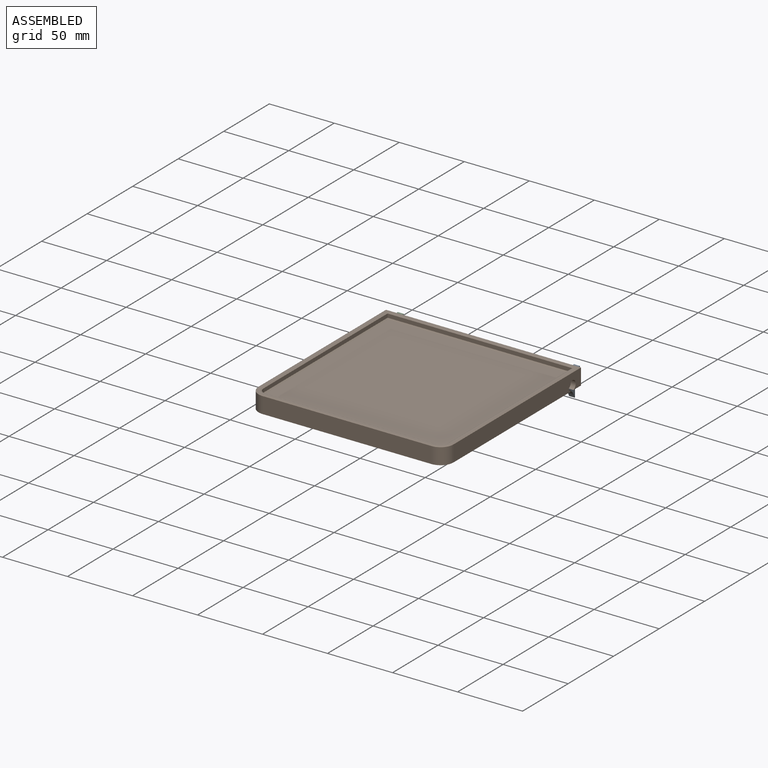
[diagram: assembled view]
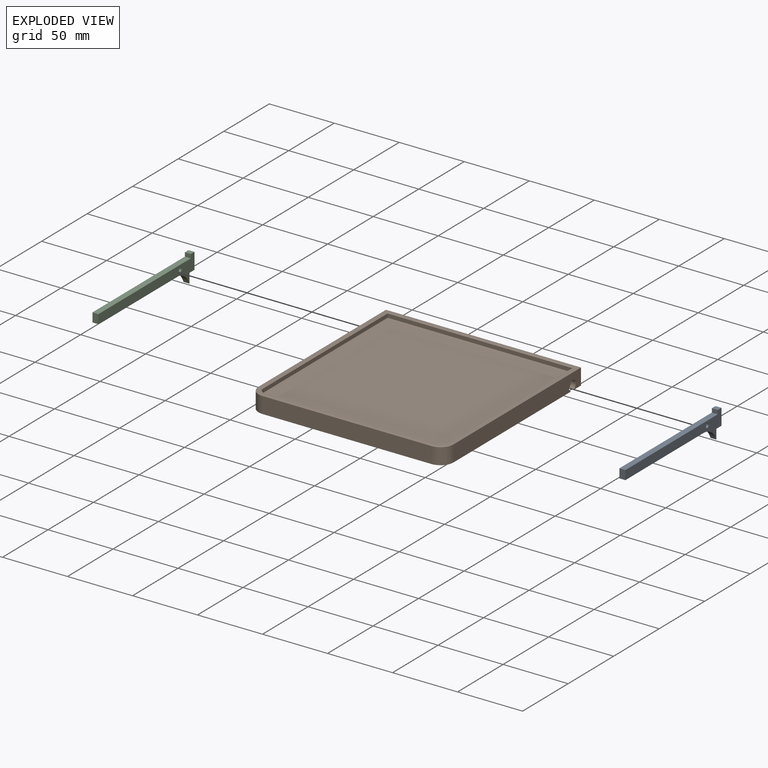
[diagram: exploded view]
GUIDED TOUR — MATED ASSEMBLY (Onshape document b846859b58dc575f62e6a8b0, AutoMate assembly b846859b58dc575f62e6a8b0_b44fd107755dee3eb834b895_cbd473a49aa8310a8f889dbc_default)

This assembly has 3 components, labeled P0..P2 below (a component is one placed occurrence of a part; the same part can appear more than once), held together by 2 mates. A mate is a constraint between two components; its type names the relative motion it leaves free:
  FASTENED — locks the two components together rigidly (no relative motion).
Axis/direction vectors are unit vectors and 'through' points are millimeter coordinates, both in the assembly's world frame.

MATES
  1. FASTENED "Fastened 2": P1 <-> P2, direction (-1.000, 0.000, 0.000) through (-72.20, 85.90, 11.00) mm
  2. FASTENED "Fastened 1": P1 <-> P0, direction (1.000, 0.000, 0.000) through (58.30, 85.90, 11.00) mm

ASSEMBLY ORDER
  1. P1 — the base component [order verified]
  2. P0 [order verified]
  3. P2 [order verified]
Order-tag legend:
  [order verified] — this step's position reverses a verified removal order: the component was checked to insert without passing through the ones already placed.

Of the 3 components, 1 carries the full construction recipe — the FeatureScript program that regenerates the part's solid from scratch; the rest are supplied as boundary geometry only.
Each toured component is shown spotlighted twice — in the assembled view, then in the exploded view, where a leader line traces a displaced component back to its assembled socket (saturated green if recipe-attached, orange if geometry-only; every other component desaturated gray) — followed by its recipe or geometry summary and the mates that hold it.
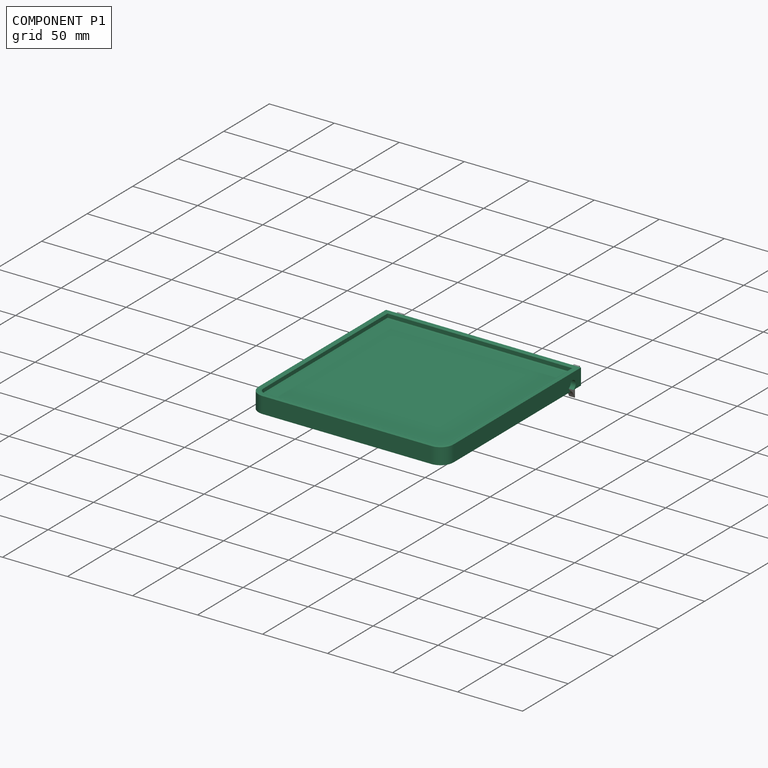
[diagram: component P1 — assembled]
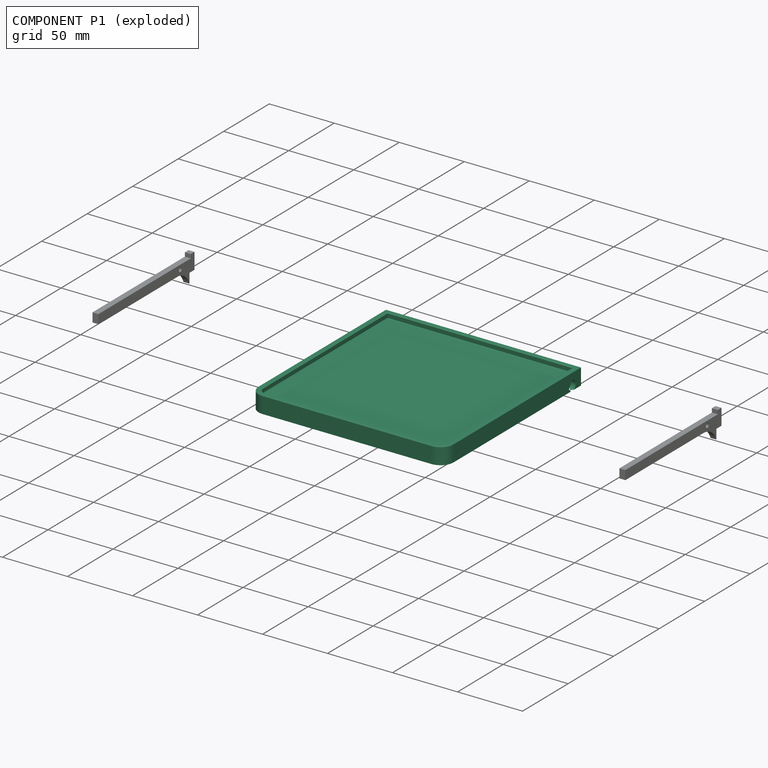
[diagram: component P1 — exploded]
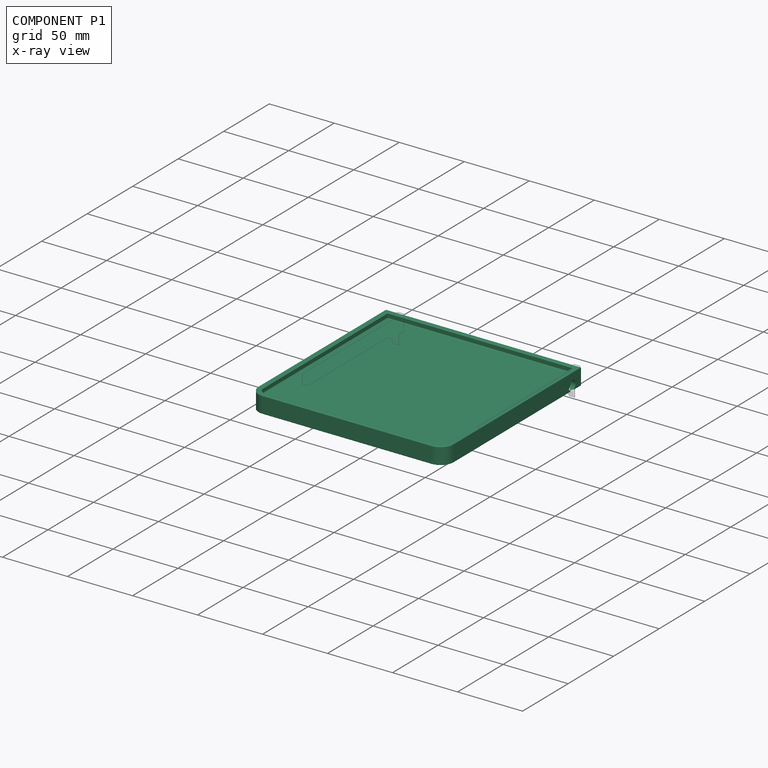
[diagram: component P1 — x-ray view]
COMPONENT P1 — recipe-attached (CADFS 00945670, mesh-verified: the recipe's output STEP matches this component's geometry to below the mesh-comparison resolution (tessellation chordal tolerance ~0.319 mm)).
Held by: FASTENED mate "Fastened 2" to P2; FASTENED mate "Fastened 1" to P0.
Construction recipe (FeatureScript — the CAD program that rebuilds this solid; sketch coordinates are in the units given by the * unit suffixes, e.g. mm):

FeatureScript 1511;
import(path : "onshape/std/geometry.fs", version : "1511.0");
import(path : "onshape/std/common.fs", version : "1511.0");
const mm = millimeter;
const VERTEX = EntityType.VERTEX;
const EDGE = EntityType.EDGE;
const FACE = EntityType.FACE;
const BODY = EntityType.BODY;
function v(x, y){return vector(x, y);}
function OD(order){return orderDisambiguation(order);}
function OSD(set){return originalSetDisambiguation(set);}
function TD(topology){return topologyDisambiguation(topology);}
function TDD(query){return trueDependencyDisambiguation(query);}
function sQuery(a, b, c) {return sketchEntityQuery(a, b, c);}

annotation { "Feature Type Name" : "Feature", "Feature Type Description" : "" }
export const myFeature = defineFeature(function(context is Context, id is Id, definition is map)
    precondition{}
    {
        {
            var Q0;
            Q0=qCreatedBy(makeId("Top.planeOp"),FACE);
            var sketch = newSketch(context, id + "F0", { "sketchPlane" : qUnion([Q0])});
            skLineSegment(sketch, "E0.bottom", {"start": v(75, 75) * mm, "end": v(-75, 75) * mm});
            skLineSegment(sketch, "E0.top", {"start": v(65, -75) * mm, "end": v(-65, -75) * mm});
            skLineSegment(sketch, "E0.left", {"start": v(75, 75) * mm, "end": v(75, -65) * mm});
            skLineSegment(sketch, "E0.right", {"start": v(-75, 75) * mm, "end": v(-75, -65) * mm});
            skPoint(sketch, "E0.middle", {"position": v(0, 0) * mm});
            skPoint(sketch, "E1.visualSharp", {"position": v(-75, -75) * mm});
            skArc(sketch, "E1.filletArc", {"start": v(-75, -65) * mm, "mid": v(-72.07, -72.07) * mm, "end": v(-65, -75) * mm});
            skPoint(sketch, "E2.visualSharp", {"position": v(75, -75) * mm});
            skArc(sketch, "E2.filletArc", {"start": v(65, -75) * mm, "mid": v(72.07, -72.07) * mm, "end": v(75, -65) * mm});
            skSolve(sketch);
        }
        {
            var Q0;
            Q0=makeQuery(id+"F0.imprint","IMPRINT",FACE,{"disambiguationData":[TD([[makeQuery(id+"F0.imprint","IMPRINT",EDGE,{"derivedFrom":sQuery(id+"F0.wireOp",EDGE,"E0.bottom")}),1.0]])]});
            extrude(context, id + "F1", {"entities" : qUnion([Q0]), "depth" : 9 * mm, "offsetDistance" : 25 * mm});
        }
        {
            var Q0;
            Q0=makeQuery(id+"F1.opExtrude","CAP_FACE",FACE,{"disambiguationData":[OSD([sQuery(id+"F0.wireOp",EDGE,"E0.bottom"),sQuery(id+"F0.wireOp",EDGE,"E0.top"),sQuery(id+"F0.wireOp",EDGE,"E0.left"),sQuery(id+"F0.wireOp",EDGE,"E0.right")])],"isStart":true});
            var sketch = newSketch(context, id + "F2", { "sketchPlane" : qUnion([Q0])});
            skLineSegment(sketch, "E3.bottom", {"start": v(70.25, -75) * mm, "end": v(65.25, -75) * mm});
            skLineSegment(sketch, "E3.top", {"start": v(70.25, 25) * mm, "end": v(65.25, 25) * mm});
            skLineSegment(sketch, "E3.left", {"start": v(70.25, -75) * mm, "end": v(70.25, 25) * mm});
            skLineSegment(sketch, "E3.right", {"start": v(65.25, -75) * mm, "end": v(65.25, 25) * mm});
            skLineSegment(sketch, "E4.bottom", {"start": v(64.25, -68.25) * mm, "end": v(61.65, -68.25) * mm});
            skLineSegment(sketch, "E4.top", {"start": v(64.25, -62.55) * mm, "end": v(61.65, -62.55) * mm});
            skLineSegment(sketch, "E4.left", {"start": v(64.25, -68.25) * mm, "end": v(64.25, -62.55) * mm});
            skLineSegment(sketch, "E4.right", {"start": v(61.65, -68.25) * mm, "end": v(61.65, -62.55) * mm});
            skPoint(sketch, "E5", {"position": v(61.65, -65.4) * mm});
            skPoint(sketch, "E6", {"position": v(62.95, -65.4) * mm});
            skPoint(sketch, "E6.positionSnap0", {"position": v(62.95, -68.25) * mm});
            skLineSegment(sketch, "E7", {"start": v(0, -75) * mm, "end": v(0, 0) * mm, "construction": true});
            skLineSegment(sketch, "E8.MirrorCS", {"start": v(-64.25, -62.55) * mm, "end": v(-61.65, -62.55) * mm});
            skLineSegment(sketch, "E9.MirrorCS", {"start": v(-64.25, -68.25) * mm, "end": v(-61.65, -68.25) * mm});
            skLineSegment(sketch, "E10.MirrorCS", {"start": v(-64.25, -68.25) * mm, "end": v(-64.25, -62.55) * mm});
            skLineSegment(sketch, "E11.MirrorCS", {"start": v(-61.65, -68.25) * mm, "end": v(-61.65, -62.55) * mm});
            skPoint(sketch, "E12.MirrorP", {"position": v(-62.95, -65.4) * mm});
            skLineSegment(sketch, "E13.MirrorCS", {"start": v(-70.25, -75) * mm, "end": v(-70.25, 25) * mm});
            skPoint(sketch, "E14.MirrorP", {"position": v(-62.95, -68.25) * mm});
            skLineSegment(sketch, "E15.MirrorCS", {"start": v(-70.25, 25) * mm, "end": v(-65.25, 25) * mm});
            skLineSegment(sketch, "E16.MirrorCS", {"start": v(-70.25, -75) * mm, "end": v(-65.25, -75) * mm});
            skLineSegment(sketch, "E17.MirrorCS", {"start": v(-65.25, -75) * mm, "end": v(-65.25, 25) * mm});
            skPoint(sketch, "E18.MirrorP", {"position": v(-61.65, -65.4) * mm});
            skSolve(sketch);
        }
        {
            var Q0;
            Q0=makeQuery(id+"F2.imprint","IMPRINT",FACE,{"disambiguationData":[TD([[makeQuery(id+"F2.imprint","IMPRINT",EDGE,{"derivedFrom":sQuery(id+"F2.wireOp",EDGE,"E3.bottom")}),-1.0]])]});
            var Q1;
            Q1=makeQuery(id+"F2.imprint","IMPRINT",FACE,{"disambiguationData":[TD([[makeQuery(id+"F2.imprint","IMPRINT",EDGE,{"derivedFrom":sQuery(id+"F2.wireOp",EDGE,"E4.bottom")}),-1.0]])]});
            var Q2;
            Q2=makeQuery(id+"F2.imprint","IMPRINT",FACE,{"disambiguationData":[TD([[makeQuery(id+"F2.imprint","IMPRINT",EDGE,{"derivedFrom":sQuery(id+"F2.wireOp",EDGE,"E8.MirrorCS")}),-1.0]])]});
            var Q3;
            Q3=makeQuery(id+"F2.imprint","IMPRINT",FACE,{"disambiguationData":[TD([[makeQuery(id+"F2.imprint","IMPRINT",EDGE,{"derivedFrom":sQuery(id+"F2.wireOp",EDGE,"E13.MirrorCS")}),-1.0]])]});
            extrude(context, id + "F3", {"entities" : qUnion([Q0, Q1, Q2, Q3]), "operationType" : NewBodyOperationType.REMOVE, "oppositeDirection" : true, "depth" : 7.4 * mm, "offsetDistance" : 25 * mm});
        }
        {
            var Q0;
            Q0=makeQuery(id+"F1.opExtrude","SWEPT_FACE",FACE,{"disambiguationData":[OSD([sQuery(id+"F0.wireOp",EDGE,"E0.right")])]});
            var sketch = newSketch(context, id + "F4", { "sketchPlane" : qUnion([Q0])});
            skPoint(sketch, "E19", {"position": v(-65.4, 3.5) * mm});
            skSolve(sketch);
        }
        {
            var Q0;
            Q0=makeQuery(id+"F1.opExtrude","SWEPT_FACE",FACE,{"disambiguationData":[OSD([sQuery(id+"F0.wireOp",EDGE,"E0.left")])]});
            var sketch = newSketch(context, id + "F5", { "sketchPlane" : qUnion([Q0])});
            skPoint(sketch, "E20", {"position": v(65.4, 3.5) * mm});
            skSolve(sketch);
        }
        {
            var Q0;
            Q0=sQuery(id+"F4.wireOp",VERTEX,"E19");
            var Q1;
            Q1=sQuery(id+"F5.wireOp",VERTEX,"E20");
            var Q2;
            Q2=makeQuery(id+"F1.opExtrude","SWEPT_BODY",BODY,{"disambiguationData":[OSD([sQuery(id+"F0.wireOp",EDGE,"E0.bottom"),sQuery(id+"F0.wireOp",EDGE,"E0.top"),sQuery(id+"F0.wireOp",EDGE,"E0.left"),sQuery(id+"F0.wireOp",EDGE,"E0.right")])]});
            hole(context, id + "F6", {"style" : HoleStyle.C_BORE, "endStyle" : HoleEndStyle.BLIND, "holeDiameter" : 3.4 * mm, "cBoreDiameter" : 7.5 * mm, "cBoreDepth" : 3.75 * mm, "majorDiameter" : 5 * mm, "holeDepth" : 15 * mm, "isTappedThrough" : true, "tappedDepth" : 12 * mm, "tapClearance" : 3, "locations" : qUnion([Q0, Q1]), "scope" : qUnion([Q2])});
        }
        {
            var Q0;
            Q0=makeQuery(id+"F1.opExtrude","CAP_FACE",FACE,{"disambiguationData":[OSD([sQuery(id+"F0.wireOp",EDGE,"E0.bottom"),sQuery(id+"F0.wireOp",EDGE,"E0.top"),sQuery(id+"F0.wireOp",EDGE,"E0.left"),sQuery(id+"F0.wireOp",EDGE,"E0.right"),sQuery(id+"F0.wireOp",EDGE,"E1.filletArc"),sQuery(id+"F0.wireOp",EDGE,"E2.filletArc")])],"isStart":false});
            var sketch = newSketch(context, id + "F7", { "sketchPlane" : qUnion([Q0])});
            skLineSegment(sketch, "E21.0", {"start": v(71, 71) * mm, "end": v(-71, 71) * mm});
            skArc(sketch, "E21.1", {"start": v(-71, -65) * mm, "mid": v(-69.24, -69.24) * mm, "end": v(-65, -71) * mm});
            skLineSegment(sketch, "E21.2", {"start": v(65, -71) * mm, "end": v(-65, -71) * mm});
            skLineSegment(sketch, "E21.3", {"start": v(-71, 71) * mm, "end": v(-71, -65) * mm});
            skArc(sketch, "E21.4", {"start": v(65, -71) * mm, "mid": v(69.24, -69.24) * mm, "end": v(71, -65) * mm});
            skLineSegment(sketch, "E21.5", {"start": v(71, 71) * mm, "end": v(71, -65) * mm});
            skSolve(sketch);
        }
        {
            var Q0;
            Q0=makeQuery(id+"F7.imprint","IMPRINT",FACE,{"disambiguationData":[TD([[makeQuery(id+"F7.imprint","IMPRINT",EDGE,{"derivedFrom":sQuery(id+"F7.wireOp",EDGE,"E21.0")}),-1.0]])]});
            extrude(context, id + "F8", {"entities" : qUnion([Q0]), "operationType" : NewBodyOperationType.ADD, "depth" : 4 * mm, "offsetDistance" : 25 * mm});
        }
        {
            var Q0;
            Q0=makeQuery(id+"F1.opExtrude","CAP_FACE",FACE,{"disambiguationData":[OSD([sQuery(id+"F0.wireOp",EDGE,"E0.bottom"),sQuery(id+"F0.wireOp",EDGE,"E0.top"),sQuery(id+"F0.wireOp",EDGE,"E0.left"),sQuery(id+"F0.wireOp",EDGE,"E0.right"),sQuery(id+"F0.wireOp",EDGE,"E1.filletArc"),sQuery(id+"F0.wireOp",EDGE,"E2.filletArc")])],"isStart":false});
            chamfer(context, id + "F9", {"entities" : qUnion([Q0]), "chamferType" : ChamferType.OFFSET_ANGLE, "width" : 1 * mm, "oppositeDirection" : false, "angle" : 30 * degree, "tangentPropagation" : true});
        }
        {
            var Q0;
            Q0=makeQuery(id+"F8.opExtrude","CAP_EDGE",EDGE,{"disambiguationData":[OSD([sQuery(id+"F7.wireOp",EDGE,"E21.3")])],"isStart":false});
            var Q1;
            Q1=makeQuery(id+"F8.opExtrude","CAP_EDGE",EDGE,{"disambiguationData":[OSD([sQuery(id+"F7.wireOp",EDGE,"E21.0")])],"isStart":false});
            var Q2;
            Q2=makeQuery(id+"F8.opExtrude","CAP_EDGE",EDGE,{"disambiguationData":[OSD([sQuery(id+"F0.wireOp",EDGE,"E0.right")])],"isStart":false});
            var Q3;
            Q3=makeQuery(id+"F8.opExtrude","CAP_EDGE",EDGE,{"disambiguationData":[OSD([sQuery(id+"F0.wireOp",EDGE,"E0.bottom")])],"isStart":false});
            chamfer(context, id + "F10", {"entities" : qUnion([Q0, Q1, Q2, Q3]), "chamferType" : ChamferType.TWO_OFFSETS, "width1" : 0.5 * mm, "oppositeDirection" : false, "width2" : 1 * mm, "tangentPropagation" : true});
        }
    });
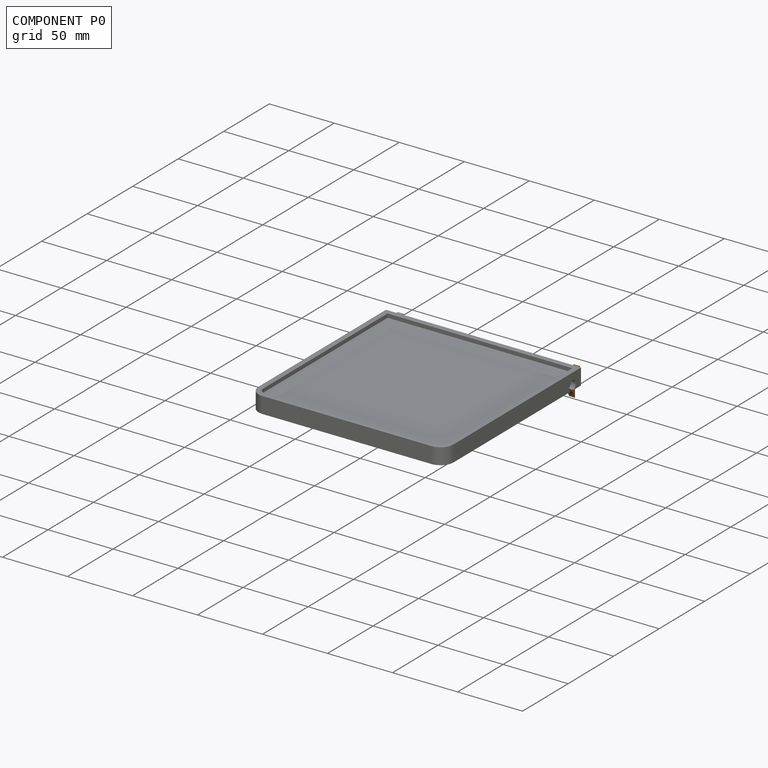
[diagram: component P0 — assembled]
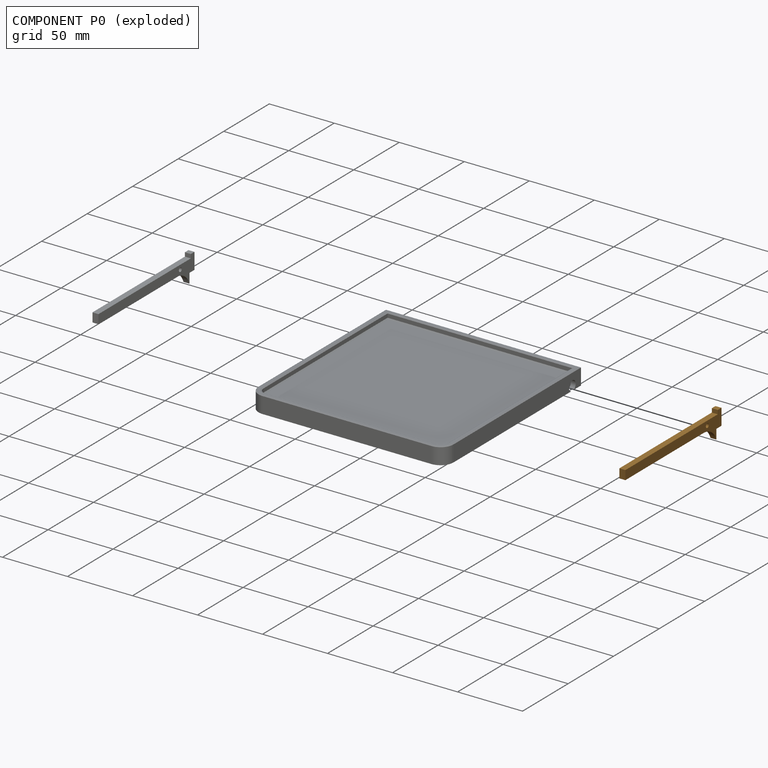
[diagram: component P0 — exploded]
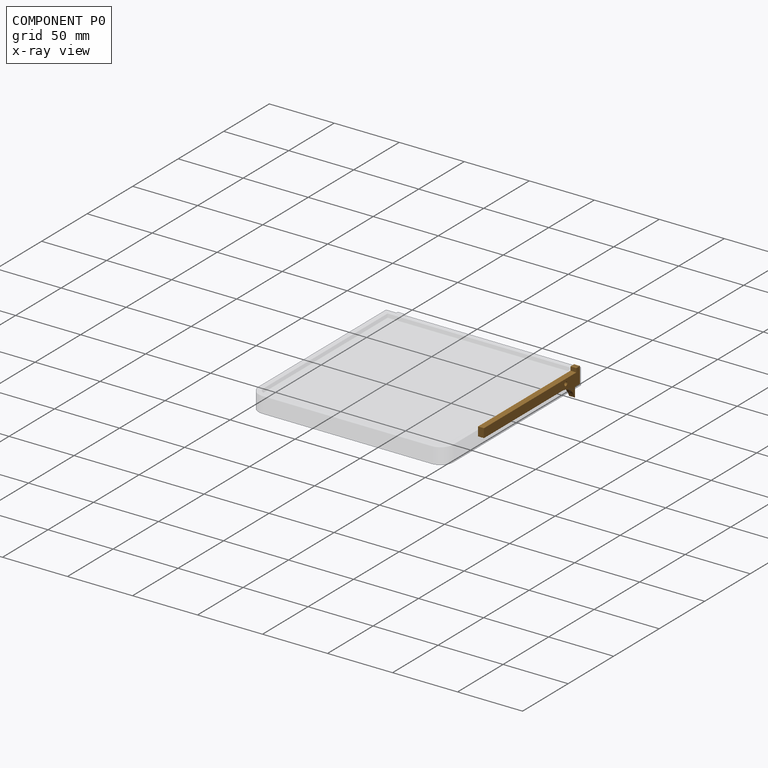
[diagram: component P0 — x-ray view]
COMPONENT P0 — geometry summary (no construction recipe available for this part):
  bounding box: 105.5 x 20.0 x 4.6 mm
  B-rep topology: 1 solid, 12 faces, 60 edges
  volume: 3655 mm^3 (38% of its bounding box)
  symmetry: mirror-symmetric across its x mid-plane
Held by: FASTENED mate "Fastened 1" to P1.
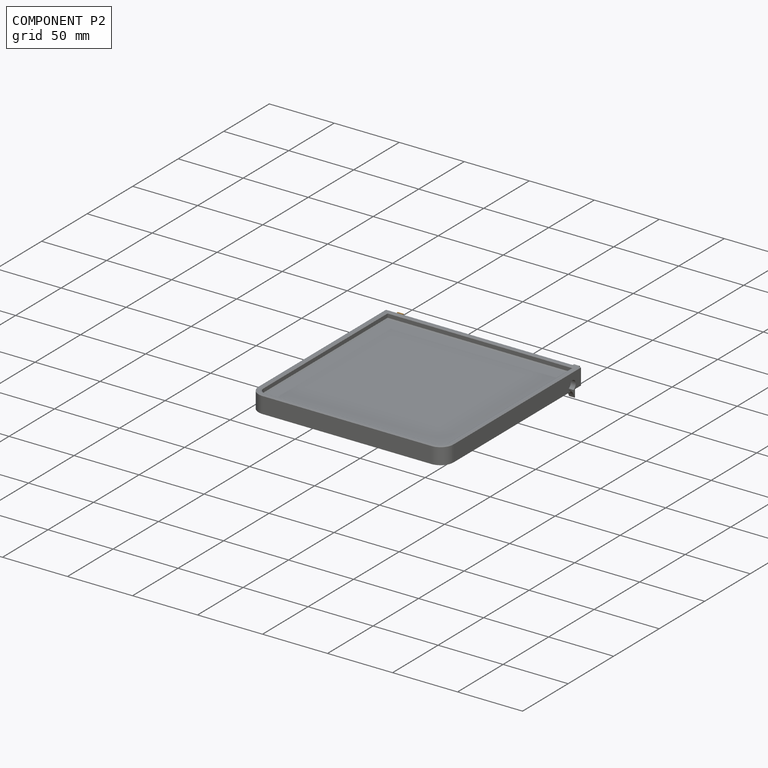
[diagram: component P2 — assembled]
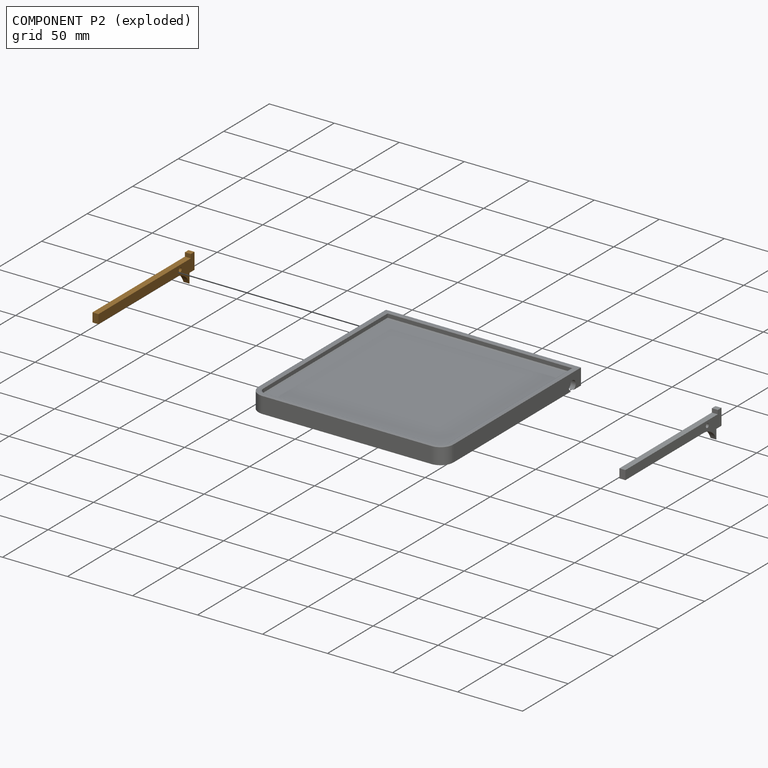
[diagram: component P2 — exploded]
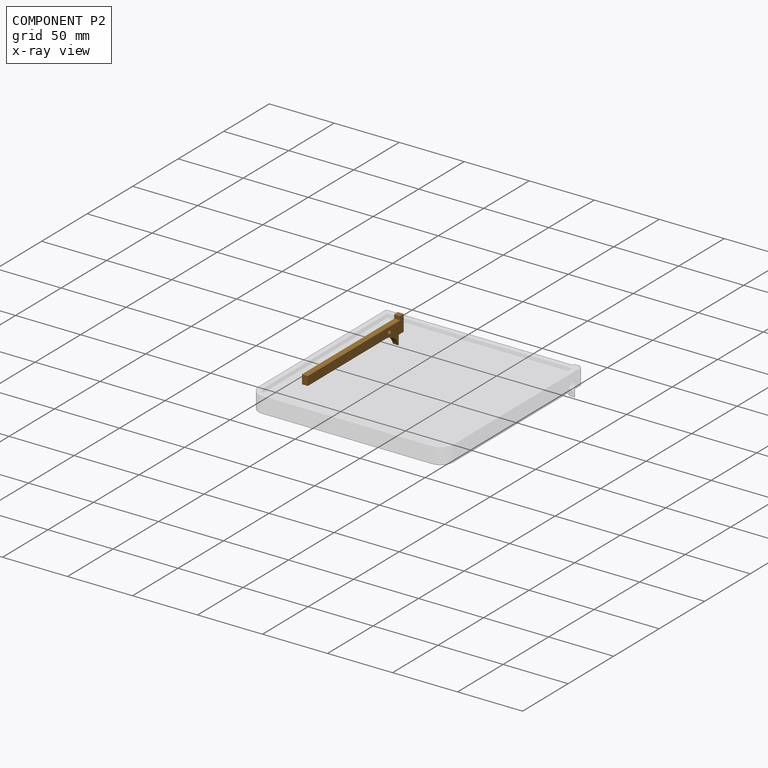
[diagram: component P2 — x-ray view]
COMPONENT P2 — geometry summary (no construction recipe available for this part):
  bounding box: 105.5 x 20.0 x 4.6 mm
  B-rep topology: 1 solid, 12 faces, 60 edges
  volume: 3655 mm^3 (38% of its bounding box)
  symmetry: mirror-symmetric across its x mid-plane
Held by: FASTENED mate "Fastened 2" to P1.
PROVENANCE & LICENSES
Assembly (occurrences, transforms, mates, per-part STEP geometry): AutoMate dataset, Zenodo record 7776208, CC0.
Construction recipes: CADFS (HuggingFace VladPyatov/CADFS, CC-BY-4.0, layered over the ABC dataset), FeatureScript reconstruction programs keyed by ABC model id.
Join: ABC meta listings map ABC model id -> Onshape documentId; within a shared document, parts are matched by geometric signature (bounding-box dims + volume at 0.1% relative tolerance, exact B-rep face/solid counts).
Verification: 1 of this assembly's 3 components carries a recipe attachment, and every attachment is mesh-verified: the CADFS STEP and the AutoMate member STEP were compared as meshes in their shared local frame (symmetric sampled-point-to-mesh distance); worst across the 1 attachment: below the mesh-comparison resolution (tessellation chordal tolerance ~0.319 mm) on a 213 mm part.
Renders: orthographic iso camera (az 35 / el 25); the floor grid conveys scale (grid pitch printed in each image; no ruler). In the exploded view each component is displaced by its stored offset vector: the offsets alone carry the explosion direction (mate normal/axis signs are not orientation cues and do not encode it), and separation distances are assigned per mate-chain, not proportionally to assembly-order depth.
